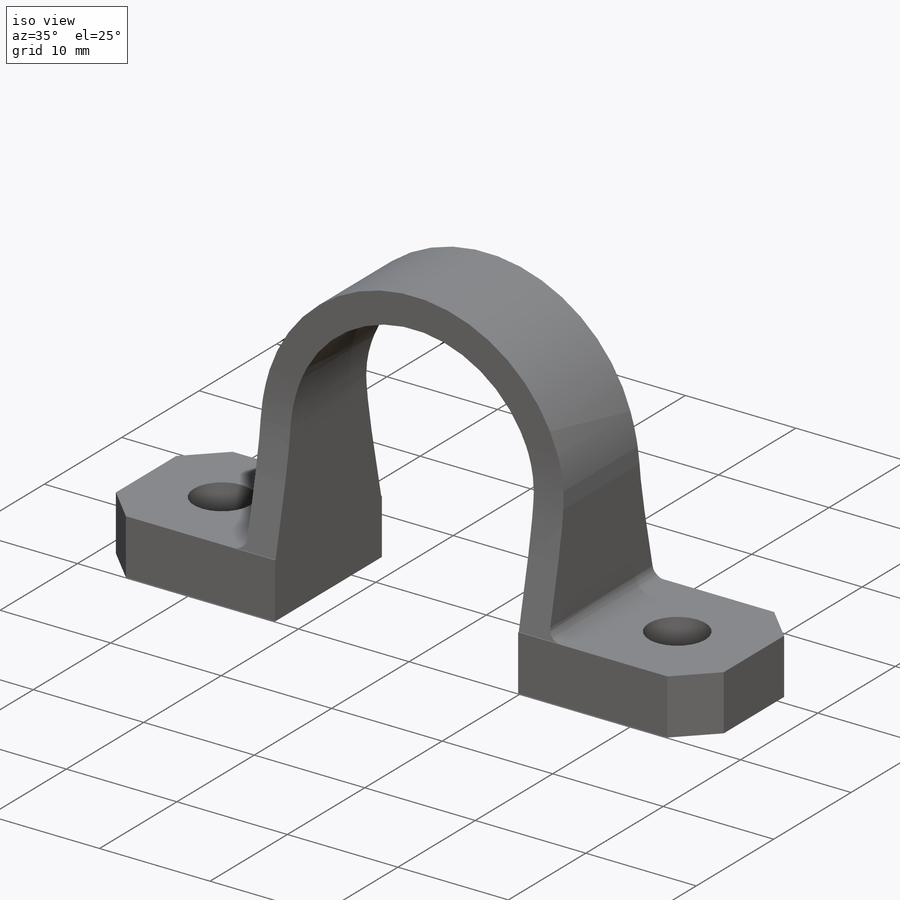
[diagram: iso view]
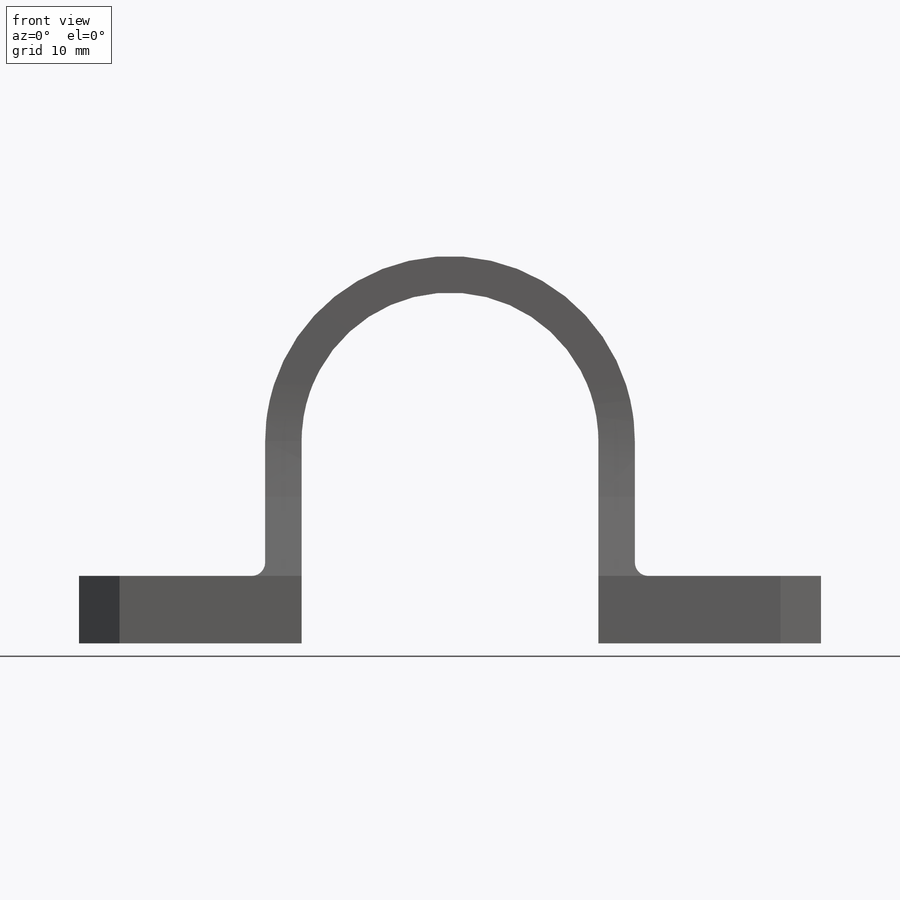
[diagram: front view]
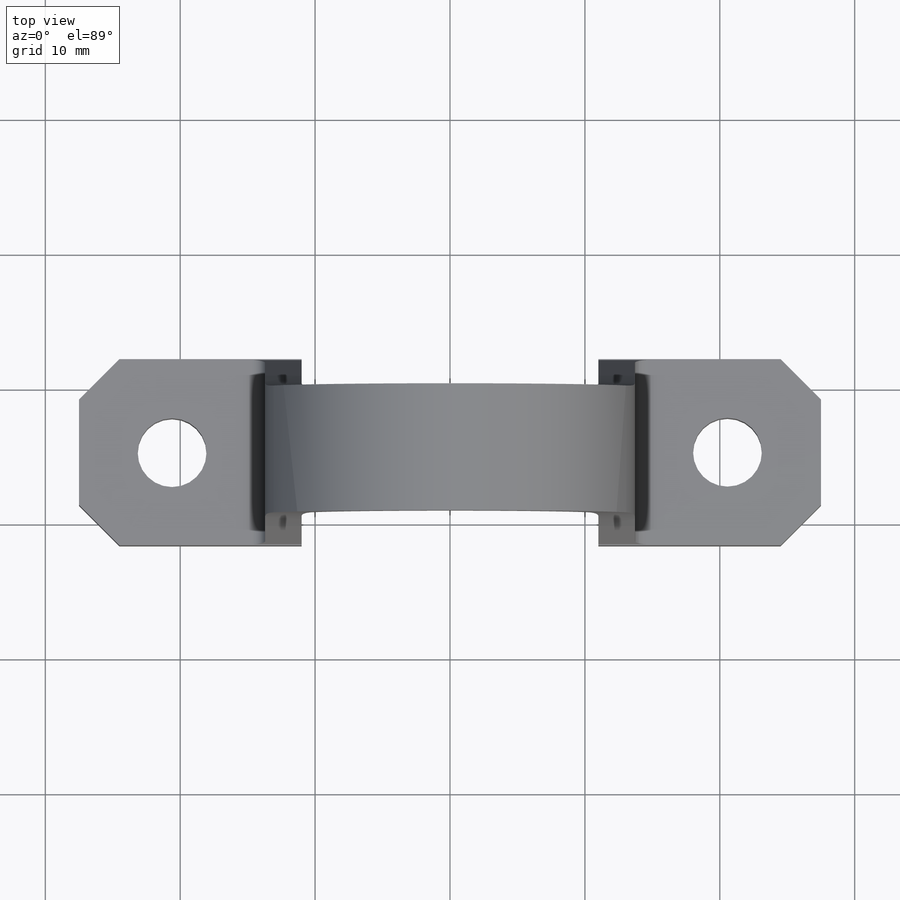
[diagram: top view]
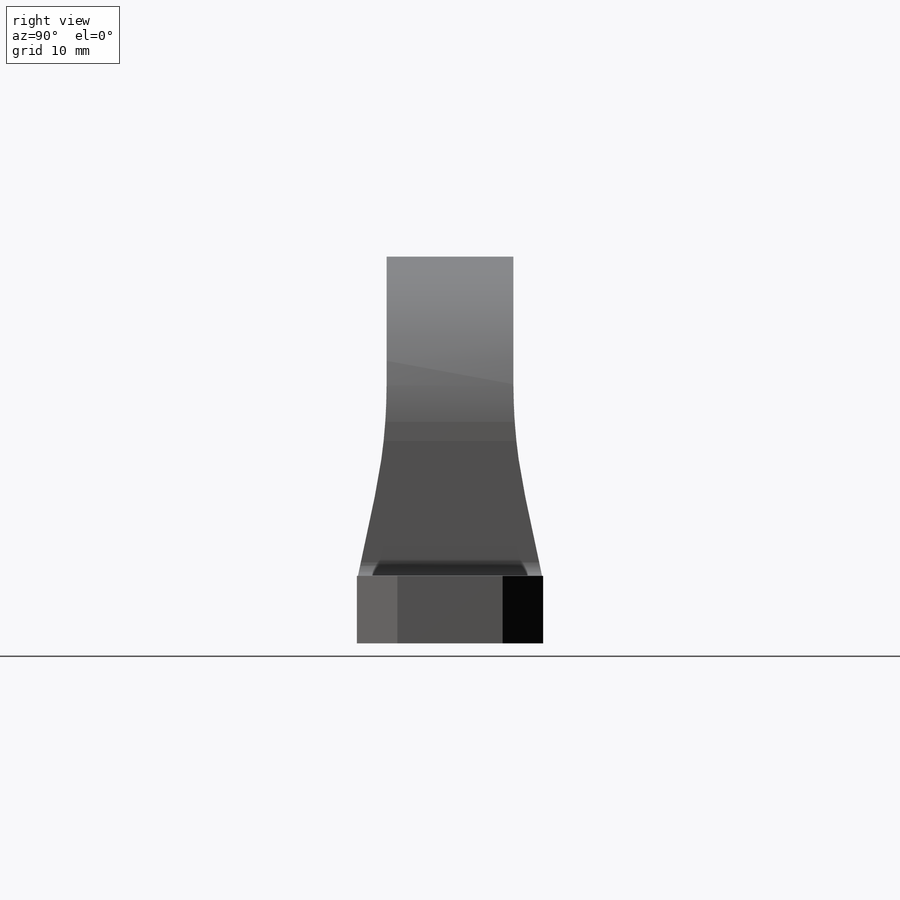
[diagram: right view]
SOLIDWORKS PART (.sldprt)
format: sldprt  version: not decoded by parser v0  size: 259,584 bytes
history: native  units: mm
features: sketch x4, extrude x3, chamfer x2, fillet x2, material x1, cut_extrude x1 (+13 scaffold rows collapsed)
feature tree (26):
  scaffold x13  (default folders/planes/origin — collapsed)
  material  "Material <not specified>"
  sketch  "Sketch1"  dims[c1.D3=~22.596745mm c1.D4=22.0mm c1.D1=5.0mm c1.D2=15.0mm c2.D3=2.7mm c2.D5=55.0mm]
  extrude  "Boss-Extrude1"  Depth=9.4mm
  sketch  "Sketch2"
  extrude  "Boss-Extrude2"  Depth=2.2mm
  sketch  "Sketch3"
  extrude  "Boss-Extrude3"  Depth=2.2mm
  chamfer  "Chamfer1"  Distance=10mm Angle=12deg
  chamfer  "Chamfer2"  Distance=3mm Angle=45deg
  fillet  "Fillet1"  Radius=40mm
  sketch  "Sketch4"  dims[D1=5.1mm D2=5.1mm]
  cut_extrude  "Cut-Extrude1"  [1 undecoded]
  fillet  "Fillet2"  Radius=1mm
decode coverage: 9 of 12 modeling features carry decoded parameters
note: ~ marks probable driven/reference dimensions
note: 1 parameter value undecoded
note: suppression state not decoded; provenance and decode notes live in map.json
